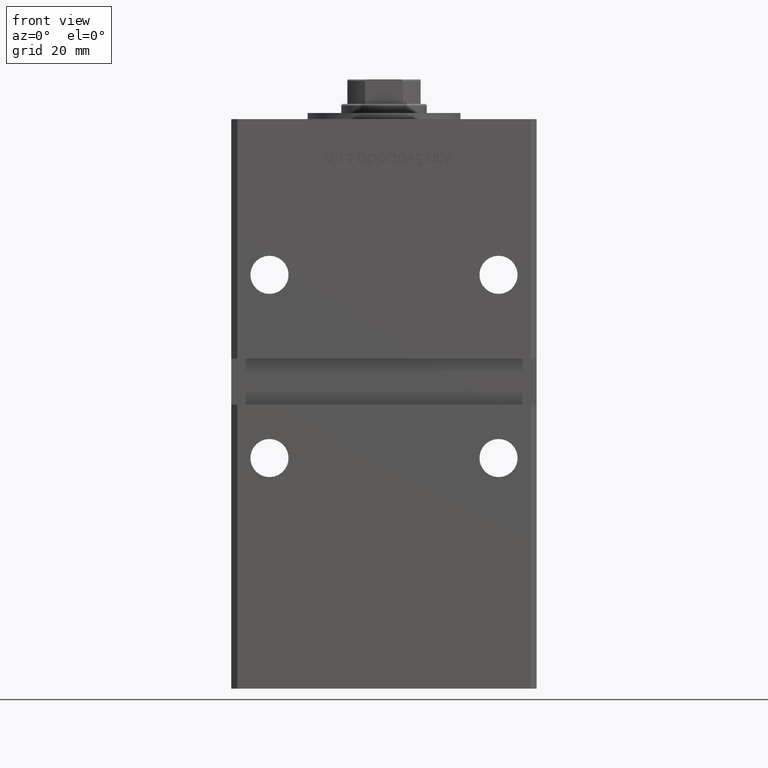
[diagram: clean part render]
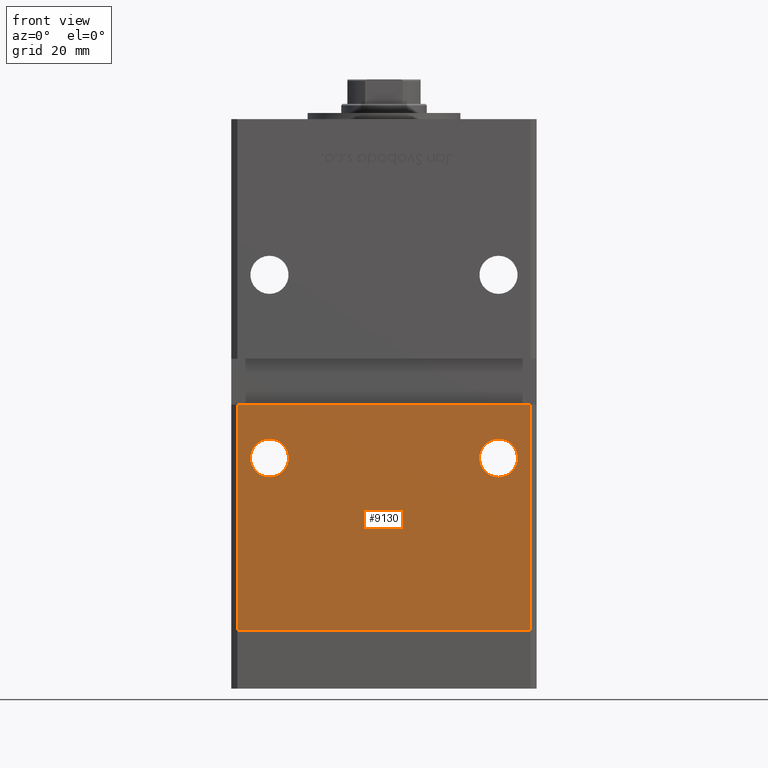
[diagram: same view with one face highlighted and labeled with its STEP entity id]
A machine part, front view. The second image highlights one B-rep face of the part: STEP entity #9130.
In plain terms, the highlighted planar face has unit normal (0, 1, 0).
Its self-contained STEP definition (entity closure, byte-faithful):
#1550 = CARTESIAN_POINT ( 'NONE',  ( -47.99999999999998579, -43.50000000000000000, 0.000000000000000000 ) ) ;
#2535 = EDGE_CURVE ( 'NONE', #3959, #38155, #30568, .T. ) ;
#2773 = CARTESIAN_POINT ( 'NONE',  ( 37.50000000000000000, -43.50000000000000000, 56.49999999999998579 ) ) ;
#3020 = DIRECTION ( 'NONE',  ( 0.000000000000000000, -0.000000000000000000, 1.000000000000000000 ) ) ;
#3959 = VERTEX_POINT ( 'NONE', #48221 ) ;
#4807 = ORIENTED_EDGE ( 'NONE', *, *, #50403, .T. ) ;
#5040 = VECTOR ( 'NONE', #6773, 1000.000000000000000 ) ;
#5334 = EDGE_LOOP ( 'NONE', ( #49853, #4807 ) ) ;
#5581 = CARTESIAN_POINT ( 'NONE',  ( -37.50000000000000000, -43.50000000000000000, 62.74999999999998579 ) ) ;
#6579 = EDGE_CURVE ( 'NONE', #3959, #21797, #8261, .T. ) ;
#6773 = DIRECTION ( 'NONE',  ( 1.000000000000000000, 0.000000000000000000, 0.000000000000000000 ) ) ;
#8261 = LINE ( 'NONE', #36792, #45414 ) ;
#8560 = VERTEX_POINT ( 'NONE', #34455 ) ;
#8753 = AXIS2_PLACEMENT_3D ( 'NONE', #24997, #12588, #41942 ) ;
#9130 = ADVANCED_FACE ( 'NONE', ( #26435, #31807, #19705 ), #39888, .F. ) ;
#9760 = VERTEX_POINT ( 'NONE', #52893 ) ;
#10520 = EDGE_CURVE ( 'NONE', #38631, #26257, #42827, .T. ) ;
#12588 = DIRECTION ( 'NONE',  ( 0.000000000000000000, 1.000000000000000000, 0.000000000000000000 ) ) ;
#13099 = CARTESIAN_POINT ( 'NONE',  ( -37.50000000000000000, -43.50000000000000000, 56.49999999999998579 ) ) ;
#15168 = CARTESIAN_POINT ( 'NONE',  ( 37.50000000000000000, -43.50000000000000000, 62.74999999999998579 ) ) ;
#15513 = ORIENTED_EDGE ( 'NONE', *, *, #2535, .T. ) ;
#16440 = CARTESIAN_POINT ( 'NONE',  ( -47.99999999999998579, -43.50000000000000000, 148.5000000000000000 ) ) ;
#19087 = CIRCLE ( 'NONE', #25967, 6.249999999999998224 ) ;
#19705 = FACE_OUTER_BOUND ( 'NONE', #49328, .T. ) ;
#19884 = ORIENTED_EDGE ( 'NONE', *, *, #31608, .T. ) ;
#20386 = AXIS2_PLACEMENT_3D ( 'NONE', #13099, #34371, #45942 ) ;
#21709 = DIRECTION ( 'NONE',  ( -0.000000000000000000, -0.000000000000000000, -1.000000000000000000 ) ) ;
#21797 = VERTEX_POINT ( 'NONE', #34893 ) ;
#22233 = CARTESIAN_POINT ( 'NONE',  ( -47.99999999999998579, -43.50000000000000000, 148.5000000000000000 ) ) ;
#22620 = EDGE_CURVE ( 'NONE', #38155, #8560, #28286, .T. ) ;
#24997 = CARTESIAN_POINT ( 'NONE',  ( 37.50000000000000000, -43.50000000000000000, 56.49999999999998579 ) ) ;
#25130 = VERTEX_POINT ( 'NONE', #15168 ) ;
#25193 = ORIENTED_EDGE ( 'NONE', *, *, #35155, .T. ) ;
#25967 = AXIS2_PLACEMENT_3D ( 'NONE', #2773, #36403, #35868 ) ;
#26257 = VERTEX_POINT ( 'NONE', #41889 ) ;
#26435 = FACE_BOUND ( 'NONE', #5334, .T. ) ;
#26464 = AXIS2_PLACEMENT_3D ( 'NONE', #16440, #48997, #3020 ) ;
#27156 = ORIENTED_EDGE ( 'NONE', *, *, #22620, .T. ) ;
#27214 = CARTESIAN_POINT ( 'NONE',  ( -47.99999999999998579, -43.50000000000000000, 0.000000000000000000 ) ) ;
#27797 = VECTOR ( 'NONE', #35320, 1000.000000000000000 ) ;
#28286 = LINE ( 'NONE', #27214, #5040 ) ;
#29696 = EDGE_LOOP ( 'NONE', ( #19884, #25193 ) ) ;
#30568 = LINE ( 'NONE', #22233, #47008 ) ;
#31608 = EDGE_CURVE ( 'NONE', #25130, #9760, #19087, .T. ) ;
#31807 = FACE_BOUND ( 'NONE', #29696, .T. ) ;
#34371 = DIRECTION ( 'NONE',  ( 0.000000000000000000, 1.000000000000000000, 0.000000000000000000 ) ) ;
#34455 = CARTESIAN_POINT ( 'NONE',  ( 47.99999999999998579, -43.50000000000000000, 0.000000000000000000 ) ) ;
#34674 = DIRECTION ( 'NONE',  ( 0.000000000000000000, 1.000000000000000000, 0.000000000000000000 ) ) ;
#34893 = CARTESIAN_POINT ( 'NONE',  ( 47.99999999999998579, -43.50000000000000000, 74.00000000000000000 ) ) ;
#35155 = EDGE_CURVE ( 'NONE', #9760, #25130, #37988, .T. ) ;
#35267 = ORIENTED_EDGE ( 'NONE', *, *, #40948, .F. ) ;
#35320 = DIRECTION ( 'NONE',  ( -0.000000000000000000, -0.000000000000000000, -1.000000000000000000 ) ) ;
#35868 = DIRECTION ( 'NONE',  ( 0.000000000000000000, 0.000000000000000000, 1.000000000000000000 ) ) ;
#36403 = DIRECTION ( 'NONE',  ( 0.000000000000000000, 1.000000000000000000, 0.000000000000000000 ) ) ;
#36792 = CARTESIAN_POINT ( 'NONE',  ( -49.99999999999998579, -43.50000000000000000, 74.00000000000000000 ) ) ;
#37068 = DIRECTION ( 'NONE',  ( 1.000000000000000000, 0.000000000000000000, 0.000000000000000000 ) ) ;
#37988 = CIRCLE ( 'NONE', #8753, 6.249999999999998224 ) ;
#38155 = VERTEX_POINT ( 'NONE', #1550 ) ;
#38442 = DIRECTION ( 'NONE',  ( 0.000000000000000000, 0.000000000000000000, 1.000000000000000000 ) ) ;
#38631 = VERTEX_POINT ( 'NONE', #5581 ) ;
#39516 = CARTESIAN_POINT ( 'NONE',  ( -37.50000000000000000, -43.50000000000000000, 56.49999999999998579 ) ) ;
#39888 = PLANE ( 'NONE',  #26464 ) ;
#40948 = EDGE_CURVE ( 'NONE', #21797, #8560, #47419, .T. ) ;
#41889 = CARTESIAN_POINT ( 'NONE',  ( -37.50000000000000000, -43.50000000000000000, 50.24999999999998579 ) ) ;
#41942 = DIRECTION ( 'NONE',  ( 0.000000000000000000, 0.000000000000000000, 1.000000000000000000 ) ) ;
#42827 = CIRCLE ( 'NONE', #44558, 6.249999999999998224 ) ;
#44558 = AXIS2_PLACEMENT_3D ( 'NONE', #39516, #34674, #38442 ) ;
#45414 = VECTOR ( 'NONE', #37068, 1000.000000000000000 ) ;
#45942 = DIRECTION ( 'NONE',  ( 0.000000000000000000, 0.000000000000000000, 1.000000000000000000 ) ) ;
#47008 = VECTOR ( 'NONE', #21709, 1000.000000000000000 ) ;
#47419 = LINE ( 'NONE', #51960, #27797 ) ;
#48221 = CARTESIAN_POINT ( 'NONE',  ( -47.99999999999998579, -43.50000000000000000, 74.00000000000000000 ) ) ;
#48872 = ORIENTED_EDGE ( 'NONE', *, *, #6579, .F. ) ;
#48997 = DIRECTION ( 'NONE',  ( 0.000000000000000000, 1.000000000000000000, 0.000000000000000000 ) ) ;
#49328 = EDGE_LOOP ( 'NONE', ( #35267, #48872, #15513, #27156 ) ) ;
#49853 = ORIENTED_EDGE ( 'NONE', *, *, #10520, .T. ) ;
#50403 = EDGE_CURVE ( 'NONE', #26257, #38631, #50431, .T. ) ;
#50431 = CIRCLE ( 'NONE', #20386, 6.249999999999998224 ) ;
#51960 = CARTESIAN_POINT ( 'NONE',  ( 47.99999999999998579, -43.50000000000000000, 148.5000000000000000 ) ) ;
#52893 = CARTESIAN_POINT ( 'NONE',  ( 37.50000000000000000, -43.50000000000000000, 50.24999999999998579 ) ) ;